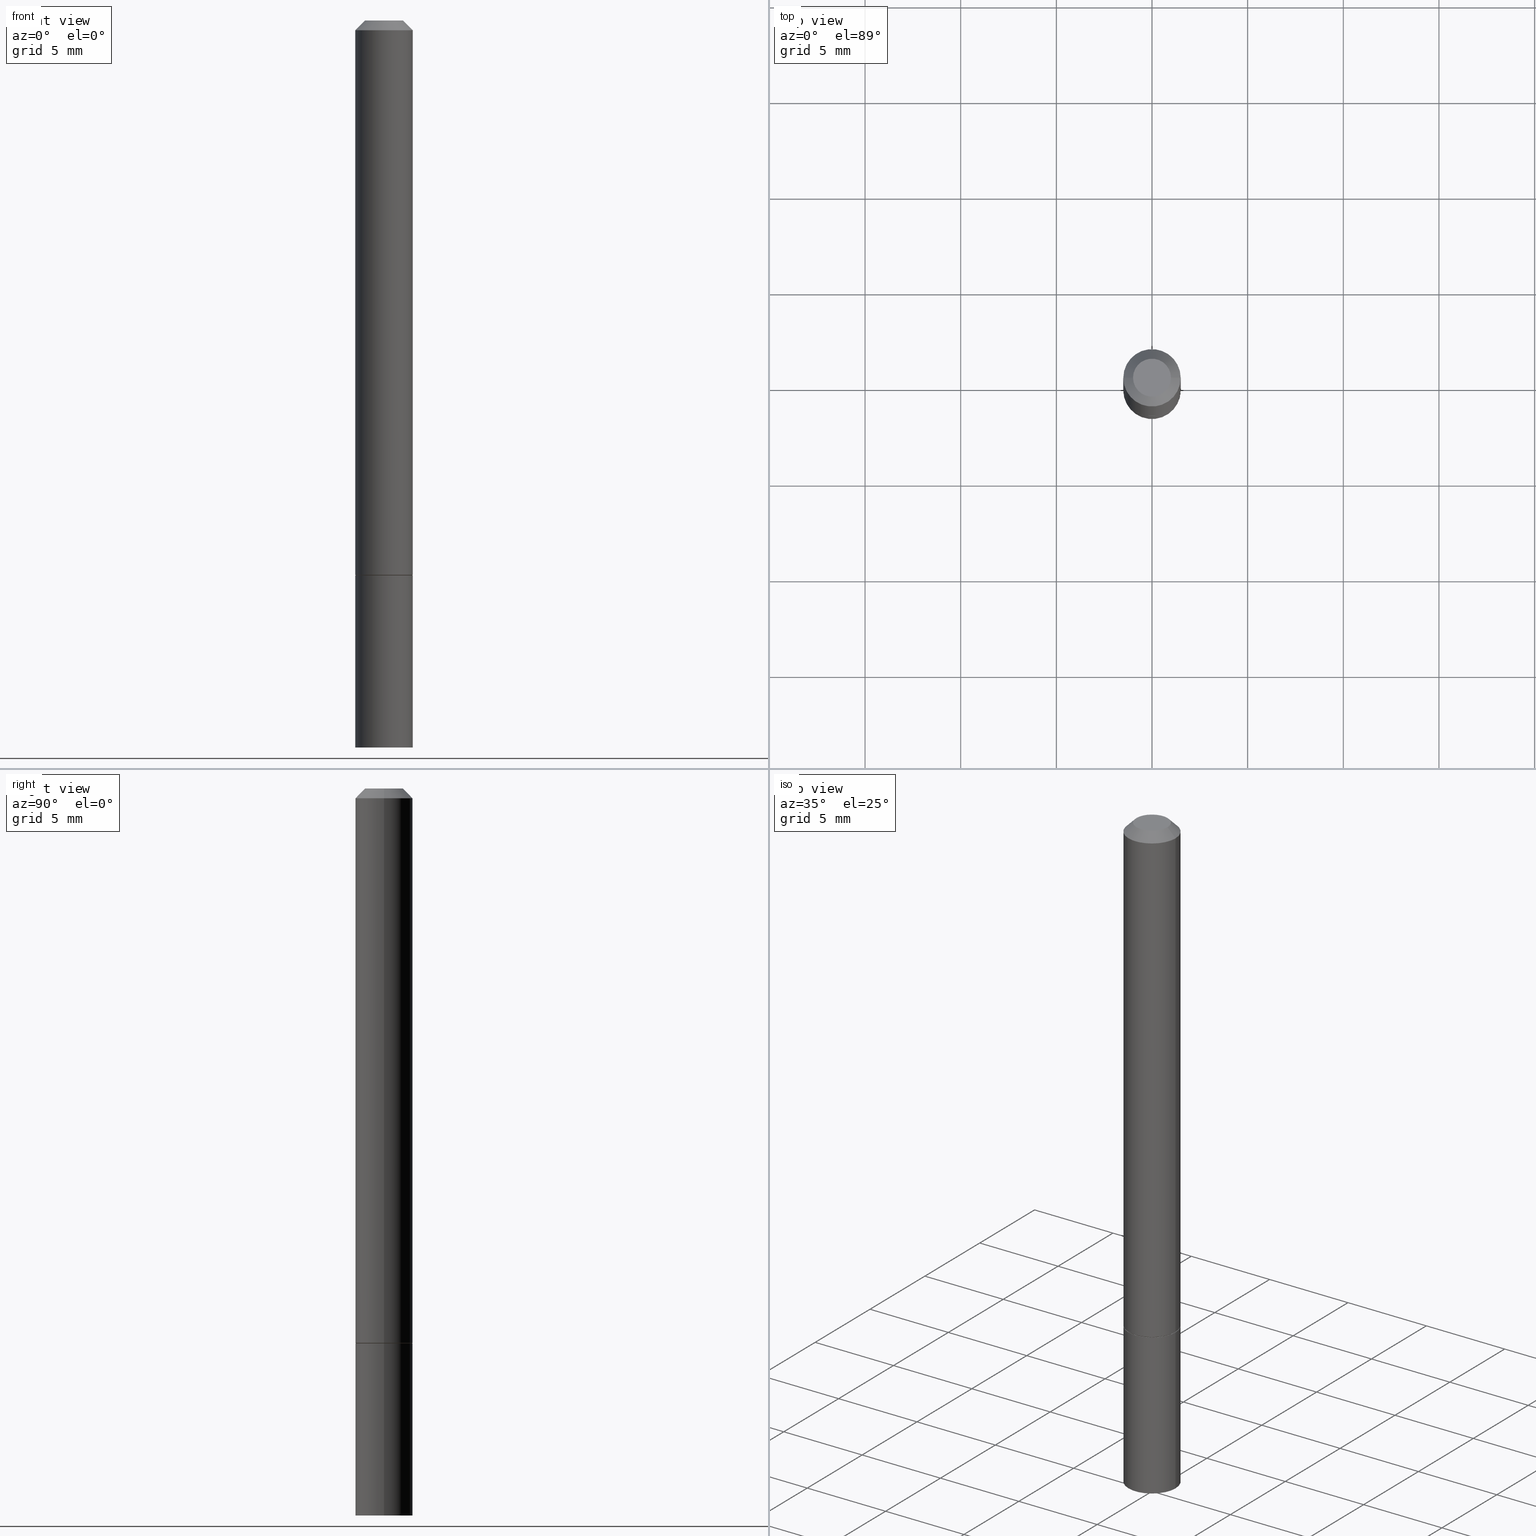
[diagram: canonical four-view strip — front | top / right | iso, engineering-drawing reading convention]
A machine part, canonical four-view strip (front | top / right | iso — engineering-drawing reading convention). The complete STEP part file that produces these views, byte-faithful:
ISO-10303-21;
HEADER;
FILE_DESCRIPTION (( 'STEP AP203' ),
    '1' );
FILE_NAME ('05075.STEP',
    '2024-02-27T12:31:26',
    ( '' ),
    ( '' ),
    'SwSTEP 2.0',
    'SolidWorks 2023',
    '' );
FILE_SCHEMA (( 'CONFIG_CONTROL_DESIGN' ));
ENDSEC;

DATA;
#1 = DIRECTION ( 'NONE',  ( 1.000000000000000000, -6.982962677686265133E-15, 0.000000000000000000 ) ) ;
#2 = DIRECTION ( 'NONE',  ( 1.000000000000000000, -6.982962677686272233E-15, 0.000000000000000000 ) ) ;
#3 = DATE_AND_TIME ( #255, #25 ) ;
#4 = DIRECTION ( 'NONE',  ( -1.000000000000000000, 6.982962677686265922E-15, -4.876176775795935793E-29 ) ) ;
#5 = EDGE_CURVE ( 'NONE', #354, #294, #287, .T. ) ;
#6 = ORIENTED_EDGE ( 'NONE', *, *, #187, .F. ) ;
#7 = CONICAL_SURFACE ( 'NONE', #115, 0.05804999999999999744, 0.7853981633975507526 ) ;
#8 = CARTESIAN_POINT ( 'NONE',  ( 0.05904999999999999832, -4.398917338808476664E-15, -1.141799999999999926 ) ) ;
#9 = DIRECTION ( 'NONE',  ( -2.445468806185136597E-29, 3.491481338843145583E-15, 1.000000000000000000 ) ) ;
#10 = DIRECTION ( 'NONE',  ( 0.7071067811866199593, -2.468850131083015945E-15, 0.7071067811864750752 ) ) ;
#11 = CARTESIAN_POINT ( 'NONE',  ( -0.05904999999999997057, 4.195754854663389506E-16, -2.904631170795520841E-30 ) ) ;
#12 = DIRECTION ( 'NONE',  ( -2.445468806185136597E-29, 3.491481338843145583E-15, 1.000000000000000000 ) ) ;
#13 = EDGE_LOOP ( 'NONE', ( #356, #195, #102, #322 ) ) ;
#14 = AXIS2_PLACEMENT_3D ( 'NONE', #264, #65, #69 ) ;
#15 = CC_DESIGN_APPROVAL ( #306, ( #124 ) ) ;
#16 = ORIENTED_EDGE ( 'NONE', *, *, #53, .T. ) ;
#17 = EDGE_LOOP ( 'NONE', ( #353, #199, #330, #298 ) ) ;
#18 = APPROVAL_ROLE ( '' ) ;
#19 = ORIENTED_EDGE ( 'NONE', *, *, #53, .F. ) ;
#20 = DATE_AND_TIME ( #188, #231 ) ;
#21 = ORIENTED_EDGE ( 'NONE', *, *, #247, .T. ) ;
#22 = ADVANCED_FACE ( 'NONE', ( #170 ), #308, .T. ) ;
#23 = EDGE_CURVE ( 'NONE', #240, #359, #225, .T. ) ;
#24 = VECTOR ( 'NONE', #10, 39.37007874015748143 ) ;
#25 = LOCAL_TIME ( 7, 31, 26.00000000000000000, #277 ) ;
#26 = CARTESIAN_POINT ( 'NONE',  ( 4.123439461174018893E-16, 0.05904999999999601540, -1.141800000000000148 ) ) ;
#27 = DIRECTION ( 'NONE',  ( -1.000000000000000000, 6.982962677686266711E-15, 0.000000000000000000 ) ) ;
#28 = ORIENTED_EDGE ( 'NONE', *, *, #250, .F. ) ;
#29 = DIRECTION ( 'NONE',  ( 0.000000000000000000, 0.000000000000000000, 1.000000000000000000 ) ) ;
#30 = DIRECTION ( 'NONE',  ( -2.445468806185136877E-29, 3.491481338843145188E-15, 1.000000000000000000 ) ) ;
#31 = CARTESIAN_POINT ( 'NONE',  ( 0.05804999999999999744, -4.391934376130790650E-15, -1.141799999999999704 ) ) ;
#32 = CARTESIAN_POINT ( 'NONE',  ( -0.05904999999999999832, -4.185513826400826604E-15, -1.141799999999999926 ) ) ;
#33 = CC_DESIGN_DATE_AND_TIME_ASSIGNMENT ( #157, #357, ( #208 ) ) ;
#34 = CARTESIAN_POINT ( 'NONE',  ( -0.05904999999999994975, 3.425143193405105373E-16, -0.02000000000000006287 ) ) ;
#35 = FACE_OUTER_BOUND ( 'NONE', #229, .T. ) ;
#36 = CARTESIAN_POINT ( 'NONE',  ( 0.000000000000000000, 0.000000000000000000, 0.000000000000000000 ) ) ;
#37 = DIRECTION ( 'NONE',  ( 1.000000000000000000, -6.982962677686265133E-15, 0.000000000000000000 ) ) ;
#38 = ADVANCED_FACE ( 'NONE', ( #335 ), #165, .T. ) ;
#39 = DIRECTION ( 'NONE',  ( -2.445468806185136877E-29, 3.491481338843145188E-15, 1.000000000000000000 ) ) ;
#40 = CYLINDRICAL_SURFACE ( 'NONE', #200, 0.05905000000000000526 ) ;
#41 = EDGE_LOOP ( 'NONE', ( #141, #340 ) ) ;
#42 = CIRCLE ( 'NONE', #68, 0.05904999999999994975 ) ;
#43 = COORDINATED_UNIVERSAL_TIME_OFFSET ( 5, 0, .BEHIND. ) ;
#44 = ORIENTED_EDGE ( 'NONE', *, *, #303, .T. ) ;
#45 = CALENDAR_DATE ( 2024, 27, 2 ) ;
#46 = ORIENTED_EDGE ( 'NONE', *, *, #201, .F. ) ;
#47 = PERSON_AND_ORGANIZATION ( #209, #137 ) ;
#48 = AXIS2_PLACEMENT_3D ( 'NONE', #135, #227, #252 ) ;
#49 = PRODUCT_DEFINITION_SHAPE ( 'NONE', 'NONE',  #124 ) ;
#50 = DIRECTION ( 'NONE',  ( 1.000000000000000000, 0.000000000000000000, 0.000000000000000000 ) ) ;
#51 = CARTESIAN_POINT ( 'NONE',  ( 2.792236282902187945E-29, -3.986573392691102533E-15, -1.141799999999999704 ) ) ;
#52 = LINE ( 'NONE', #164, #75 ) ;
#53 = EDGE_CURVE ( 'NONE', #304, #218, #224, .T. ) ;
#54 = MANIFOLD_SOLID_BREP ( 'Body-Move/Copy2[2]', #159 ) ;
#55 = DIRECTION ( 'NONE',  ( -2.445468806185136597E-29, 3.491481338843145583E-15, 1.000000000000000000 ) ) ;
#56 = DIRECTION ( 'NONE',  ( 2.438088387897960049E-29, -3.491481338843145188E-15, -1.000000000000000000 ) ) ;
#57 = EDGE_CURVE ( 'NONE', #218, #304, #327, .T. ) ;
#58 = CIRCLE ( 'NONE', #332, 0.05904999999999994975 ) ;
#59 = DIRECTION ( 'NONE',  ( -2.445468806185136597E-29, 3.491481338843145583E-15, 1.000000000000000000 ) ) ;
#60 = MANIFOLD_SOLID_BREP ( 'Body-Move/Copy2[1]', #189 ) ;
#61 = CARTESIAN_POINT ( 'NONE',  ( 2.789790814096003463E-29, -3.983081911352260315E-15, -1.140799999999999814 ) ) ;
#62 = CC_DESIGN_PERSON_AND_ORGANIZATION_ASSIGNMENT ( #132, #364, ( #363 ) ) ;
#63 = CARTESIAN_POINT ( 'NONE',  ( 0.000000000000000000, 0.000000000000000000, 0.000000000000000000 ) ) ;
#64 =( NAMED_UNIT ( * ) PLANE_ANGLE_UNIT ( ) SI_UNIT ( $, .RADIAN. ) );
#65 = DIRECTION ( 'NONE',  ( -2.445468806185136597E-29, 3.491481338843145583E-15, 1.000000000000000000 ) ) ;
#66 = DIRECTION ( 'NONE',  ( -1.000000000000000000, 6.982962677686265922E-15, -4.876176775795935793E-29 ) ) ;
#67 = PLANE ( 'NONE',  #130 ) ;
#68 = AXIS2_PLACEMENT_3D ( 'NONE', #259, #309, #193 ) ;
#69 = DIRECTION ( 'NONE',  ( 1.000000000000000000, -6.982962677686270655E-15, 0.000000000000000000 ) ) ;
#70 = DIRECTION ( 'NONE',  ( -2.445468806185136597E-29, 3.491481338843145583E-15, 1.000000000000000000 ) ) ;
#71 = ORIENTED_EDGE ( 'NONE', *, *, #250, .T. ) ;
#72 = APPROVAL_DATE_TIME ( #151, #257 ) ;
#73 = VERTEX_POINT ( 'NONE', #313 ) ;
#74 = AXIS2_PLACEMENT_3D ( 'NONE', #261, #283, #334 ) ;
#75 = VECTOR ( 'NONE', #192, 39.37007874015748854 ) ;
#76 = SHAPE_DEFINITION_REPRESENTATION ( #49, #106 ) ;
#77 = ORIENTED_EDGE ( 'NONE', *, *, #187, .T. ) ;
#78 = ORIENTED_EDGE ( 'NONE', *, *, #196, .T. ) ;
#79 = CONICAL_SURFACE ( 'NONE', #275, 0.05904999999999994975, 0.7853981633974476129 ) ;
#80 = DIRECTION ( 'NONE',  ( 2.438088387897960049E-29, -3.491481338843145188E-15, -1.000000000000000000 ) ) ;
#81 = DIRECTION ( 'NONE',  ( 2.438088387897960049E-29, -3.491481338843145188E-15, -1.000000000000000000 ) ) ;
#82 = LENGTH_MEASURE_WITH_UNIT ( LENGTH_MEASURE( 0.02539999999999999897 ), #221 );
#83 = AXIS2_PLACEMENT_3D ( 'NONE', #265, #315, #147 ) ;
#84 = DIRECTION ( 'NONE',  ( 2.445468806185136597E-29, -3.491481338843145583E-15, -1.000000000000000000 ) ) ;
#85 = CARTESIAN_POINT ( 'NONE',  ( 0.05905000000000000526, -4.123439461173741313E-16, 2.879382386107500571E-30 ) ) ;
#86 = ADVANCED_FACE ( 'NONE', ( #113 ), #278, .T. ) ;
#87 = CARTESIAN_POINT ( 'NONE',  ( -0.05904999999999994975, 3.425143193405105373E-16, -0.02000000000000006287 ) ) ;
#88 = CARTESIAN_POINT ( 'NONE',  ( 0.03904999999999995974, -3.714222401791248901E-16, -4.268512490100186330E-17 ) ) ;
#89 = AXIS2_PLACEMENT_3D ( 'NONE', #235, #348, #37 ) ;
#90 = DIRECTION ( 'NONE',  ( -2.445468806185136597E-29, 3.491481338843145583E-15, 1.000000000000000000 ) ) ;
#91 = DIRECTION ( 'NONE',  ( -2.445468806185136597E-29, 3.491481338843145583E-15, 1.000000000000000000 ) ) ;
#92 = DESIGN_CONTEXT ( 'detailed design', #226, 'design' ) ;
#93 = DIRECTION ( 'NONE',  ( 1.000000000000000000, -6.982962677686266711E-15, 4.873707401586867728E-29 ) ) ;
#94 = LINE ( 'NONE', #11, #238 ) ;
#95 = CIRCLE ( 'NONE', #260, 0.05904999999999999832 ) ;
#96 = COORDINATED_UNIVERSAL_TIME_OFFSET ( 5, 0, .BEHIND. ) ;
#97 = DIRECTION ( 'NONE',  ( -2.438088387897960049E-29, 3.491481338843145188E-15, 1.000000000000000000 ) ) ;
#98 = EDGE_LOOP ( 'NONE', ( #109, #78 ) ) ;
#99 = VERTEX_POINT ( 'NONE', #172 ) ;
#100 = ORIENTED_EDGE ( 'NONE', *, *, #301, .F. ) ;
#101 = ORIENTED_EDGE ( 'NONE', *, *, #360, .T. ) ;
#102 = ORIENTED_EDGE ( 'NONE', *, *, #350, .T. ) ;
#103 = AXIS2_PLACEMENT_3D ( 'NONE', #239, #352, #290 ) ;
#104 = CC_DESIGN_APPROVAL ( #257, ( #338 ) ) ;
#105 = APPLICATION_PROTOCOL_DEFINITION ( 'international standard', 'config_control_design', 1994, #226 ) ;
#106 = ADVANCED_BREP_SHAPE_REPRESENTATION ( '05075', ( #60, #54, #145 ), #184 ) ;
#107 = CARTESIAN_POINT ( 'NONE',  ( 1.043851414335219781E-45, -1.490343170380447145E-31, -4.268512490100411279E-17 ) ) ;
#108 = CIRCLE ( 'NONE', #48, 0.05905000000000001914 ) ;
#109 = ORIENTED_EDGE ( 'NONE', *, *, #5, .T. ) ;
#110 = FACE_OUTER_BOUND ( 'NONE', #220, .T. ) ;
#111 = PRODUCT_RELATED_PRODUCT_CATEGORY ( 'detail', '', ( #363 ) ) ;
#112 = APPROVAL_STATUS ( 'not_yet_approved' ) ;
#113 = FACE_OUTER_BOUND ( 'NONE', #326, .T. ) ;
#114 = CARTESIAN_POINT ( 'NONE',  ( -0.05804999999999999744, -3.574103334582364048E-15, -1.141799999999999704 ) ) ;
#115 = AXIS2_PLACEMENT_3D ( 'NONE', #144, #9, #118 ) ;
#116 = CARTESIAN_POINT ( 'NONE',  ( 0.05905000000000001914, -5.635949177160603791E-15, -1.496099999999999985 ) ) ;
#117 = CC_DESIGN_SECURITY_CLASSIFICATION ( #208, ( #338 ) ) ;
#118 = DIRECTION ( 'NONE',  ( 1.000000000000000000, -6.982962677686272233E-15, 0.000000000000000000 ) ) ;
#119 = DIRECTION ( 'NONE',  ( 1.000000000000000000, -6.982962677686266711E-15, 0.000000000000000000 ) ) ;
#120 = CARTESIAN_POINT ( 'NONE',  ( 0.05904999999999997057, -4.123439461173738848E-16, 2.879382386107498819E-30 ) ) ;
#121 = ORIENTED_EDGE ( 'NONE', *, *, #350, .F. ) ;
#122 = CIRCLE ( 'NONE', #83, 0.05904999999999999832 ) ;
#123 = EDGE_LOOP ( 'NONE', ( #19, #134 ) ) ;
#124 = PRODUCT_DEFINITION ( 'UNKNOWN', '', #338, #92 ) ;
#125 = DATE_AND_TIME ( #272, #297 ) ;
#126 = ORIENTED_EDGE ( 'NONE', *, *, #246, .F. ) ;
#127 = VERTEX_POINT ( 'NONE', #87 ) ;
#128 = APPROVAL_ROLE ( '' ) ;
#129 = VERTEX_POINT ( 'NONE', #197 ) ;
#130 = AXIS2_PLACEMENT_3D ( 'NONE', #174, #97, #177 ) ;
#131 = VECTOR ( 'NONE', #228, 39.37007874015748143 ) ;
#132 = PERSON_AND_ORGANIZATION ( #209, #137 ) ;
#133 = CC_DESIGN_PERSON_AND_ORGANIZATION_ASSIGNMENT ( #211, #155, ( #124 ) ) ;
#134 = ORIENTED_EDGE ( 'NONE', *, *, #57, .F. ) ;
#135 = CARTESIAN_POINT ( 'NONE',  ( 3.658665880933582389E-29, -5.223605231043229660E-15, -1.496099999999999985 ) ) ;
#136 = VERTEX_POINT ( 'NONE', #32 ) ;
#137 = ORGANIZATION ( 'UNSPECIFIED', 'UNSPECIFIED', '' ) ;
#138 = DIRECTION ( 'NONE',  ( 1.000000000000000000, -6.982962677686267499E-15, 4.876176775795936353E-29 ) ) ;
#139 = EDGE_LOOP ( 'NONE', ( #266, #213, #273, #150 ) ) ;
#140 = PLANE ( 'NONE',  #190 ) ;
#141 = ORIENTED_EDGE ( 'NONE', *, *, #254, .F. ) ;
#142 = CARTESIAN_POINT ( 'NONE',  ( 0.05804999999999999744, -4.391934376130790650E-15, -1.141799999999999704 ) ) ;
#143 = AXIS2_PLACEMENT_3D ( 'NONE', #107, #90, #339 ) ;
#144 = CARTESIAN_POINT ( 'NONE',  ( 2.792236282902187945E-29, -3.986573392691102533E-15, -1.141799999999999704 ) ) ;
#145 = AXIS2_PLACEMENT_3D ( 'NONE', #36, #29, #50 ) ;
#146 = MECHANICAL_CONTEXT ( 'NONE', #198, 'mechanical' ) ;
#147 = DIRECTION ( 'NONE',  ( 1.000000000000000000, -6.982962677686265133E-15, 0.000000000000000000 ) ) ;
#148 = DIRECTION ( 'NONE',  ( -2.445468806185136877E-29, 3.491481338843145188E-15, 1.000000000000000000 ) ) ;
#149 = EDGE_CURVE ( 'NONE', #127, #129, #42, .T. ) ;
#150 = ORIENTED_EDGE ( 'NONE', *, *, #23, .F. ) ;
#151 = DATE_AND_TIME ( #214, #160 ) ;
#152 = CIRCLE ( 'NONE', #89, 0.05904999999999999832 ) ;
#153 = EDGE_LOOP ( 'NONE', ( #21, #300 ) ) ;
#154 = UNCERTAINTY_MEASURE_WITH_UNIT (LENGTH_MEASURE( 1.000000000000000082E-05 ), #345, 'distance_accuracy_value', 'NONE');
#155 = PERSON_AND_ORGANIZATION_ROLE ( 'creator' ) ;
#156 = VERTEX_POINT ( 'NONE', #276 ) ;
#157 = DATE_AND_TIME ( #45, #288 ) ;
#158 = ORIENTED_EDGE ( 'NONE', *, *, #175, .T. ) ;
#159 = CLOSED_SHELL ( 'NONE', ( #286, #22, #166, #344, #222, #271, #268, #358 ) ) ;
#160 = LOCAL_TIME ( 7, 31, 26.00000000000000000, #96 ) ;
#161 = ADVANCED_FACE ( 'NONE', ( #251 ), #337, .F. ) ;
#162 = AXIS2_PLACEMENT_3D ( 'NONE', #321, #70, #179 ) ;
#163 = DIRECTION ( 'NONE',  ( -2.445468806185136597E-29, 3.491481338843145583E-15, 1.000000000000000000 ) ) ;
#164 = CARTESIAN_POINT ( 'NONE',  ( 0.05904999999999994975, -4.749420335452716734E-16, -0.02000000000000006287 ) ) ;
#165 = PLANE ( 'NONE',  #342 ) ;
#166 = ADVANCED_FACE ( 'NONE', ( #110 ), #79, .T. ) ;
#167 = DIRECTION ( 'NONE',  ( -1.000000000000000000, 6.982962677686265922E-15, -4.876176775795935793E-29 ) ) ;
#168 = VECTOR ( 'NONE', #39, 39.37007874015748143 ) ;
#169 = CIRCLE ( 'NONE', #14, 0.05905000000000001914 ) ;
#170 = FACE_OUTER_BOUND ( 'NONE', #329, .T. ) ;
#171 = DIRECTION ( 'NONE',  ( -2.445468806185136597E-29, 3.491481338843145583E-15, 1.000000000000000000 ) ) ;
#172 = CARTESIAN_POINT ( 'NONE',  ( -0.05905000000000002608, -4.185513826400826604E-15, -1.496099999999999985 ) ) ;
#173 = FACE_OUTER_BOUND ( 'NONE', #123, .T. ) ;
#174 = CARTESIAN_POINT ( 'NONE',  ( 2.792236282902188505E-29, -3.986573392691103322E-15, -1.141799999999999926 ) ) ;
#175 = EDGE_CURVE ( 'NONE', #99, #240, #108, .T. ) ;
#176 = APPROVAL_STATUS ( 'not_yet_approved' ) ;
#177 = DIRECTION ( 'NONE',  ( 1.000000000000000000, -6.982962677686265922E-15, 4.876176775795935793E-29 ) ) ;
#178 = PERSON_AND_ORGANIZATION ( #209, #137 ) ;
#179 = DIRECTION ( 'NONE',  ( 1.000000000000000000, -6.982962677686272233E-15, 0.000000000000000000 ) ) ;
#180 = ORIENTED_EDGE ( 'NONE', *, *, #293, .F. ) ;
#181 = APPROVAL_STATUS ( 'not_yet_approved' ) ;
#182 = CIRCLE ( 'NONE', #216, 0.05904999999999999832 ) ;
#183 = ORIENTED_EDGE ( 'NONE', *, *, #333, .T. ) ;
#184 =( GEOMETRIC_REPRESENTATION_CONTEXT ( 3 ) GLOBAL_UNCERTAINTY_ASSIGNED_CONTEXT ( ( #154 ) ) GLOBAL_UNIT_ASSIGNED_CONTEXT ( ( #345, #64, #347 ) ) REPRESENTATION_CONTEXT ( 'NONE', 'WORKASPACE' ) );
#185 = PERSON_AND_ORGANIZATION ( #209, #137 ) ;
#186 = EDGE_LOOP ( 'NONE', ( #46, #183, #253, #244 ) ) ;
#187 = EDGE_CURVE ( 'NONE', #156, #73, #95, .T. ) ;
#188 = CALENDAR_DATE ( 2024, 27, 2 ) ;
#189 = CLOSED_SHELL ( 'NONE', ( #279, #38, #161, #86 ) ) ;
#190 = AXIS2_PLACEMENT_3D ( 'NONE', #289, #80, #66 ) ;
#191 = APPROVAL ( #181, 'UNSPECIFIED' ) ;
#192 = DIRECTION ( 'NONE',  ( 0.7071067811865469066, -7.319954787623252890E-15, -0.7071067811865479058 ) ) ;
#193 = DIRECTION ( 'NONE',  ( 1.000000000000000000, -6.982962677686266711E-15, 0.000000000000000000 ) ) ;
#194 = APPROVAL_ROLE ( '' ) ;
#195 = ORIENTED_EDGE ( 'NONE', *, *, #57, .T. ) ;
#196 = EDGE_CURVE ( 'NONE', #294, #354, #302, .T. ) ;
#197 = CARTESIAN_POINT ( 'NONE',  ( 0.05904999999999994975, -4.749420335452716734E-16, -0.02000000000000006287 ) ) ;
#198 = APPLICATION_CONTEXT ( 'configuration controlled 3d designs of mechanical parts and assemblies' ) ;
#199 = ORIENTED_EDGE ( 'NONE', *, *, #5, .F. ) ;
#200 = AXIS2_PLACEMENT_3D ( 'NONE', #346, #91, #205 ) ;
#201 = EDGE_CURVE ( 'NONE', #73, #127, #94, .T. ) ;
#202 = LINE ( 'NONE', #34, #295 ) ;
#203 = CARTESIAN_POINT ( 'NONE',  ( 2.792236282902187945E-29, -3.986573392691102533E-15, -1.141799999999999704 ) ) ;
#204 = CC_DESIGN_PERSON_AND_ORGANIZATION_ASSIGNMENT ( #47, #236, ( #208 ) ) ;
#205 = DIRECTION ( 'NONE',  ( 1.000000000000000000, -6.982962677686267499E-15, 4.876176775795936353E-29 ) ) ;
#206 = DIRECTION ( 'NONE',  ( -2.445468806185136597E-29, 3.491481338843145583E-15, 1.000000000000000000 ) ) ;
#207 = LINE ( 'NONE', #120, #168 ) ;
#208 = SECURITY_CLASSIFICATION ( '', '', #318 ) ;
#209 = PERSON ( 'UNSPECIFIED', 'UNSPECIFIED', 'UNSPECIFIED', ('UNSPECIFIED'), ('UNSPECIFIED'), ('UNSPECIFIED') ) ;
#210 = CC_DESIGN_PERSON_AND_ORGANIZATION_ASSIGNMENT ( #178, #299, ( #338 ) ) ;
#211 = PERSON_AND_ORGANIZATION ( #209, #137 ) ;
#212 = FACE_OUTER_BOUND ( 'NONE', #13, .T. ) ;
#213 = ORIENTED_EDGE ( 'NONE', *, *, #246, .T. ) ;
#214 = CALENDAR_DATE ( 2024, 27, 2 ) ;
#215 = APPROVAL_DATE_TIME ( #3, #306 ) ;
#216 = AXIS2_PLACEMENT_3D ( 'NONE', #61, #171, #314 ) ;
#217 = ORIENTED_EDGE ( 'NONE', *, *, #196, .F. ) ;
#218 = VERTEX_POINT ( 'NONE', #285 ) ;
#219 = EDGE_CURVE ( 'NONE', #156, #129, #207, .T. ) ;
#220 = EDGE_LOOP ( 'NONE', ( #217, #101, #71, #100 ) ) ;
#221 =( LENGTH_UNIT ( ) NAMED_UNIT ( * ) SI_UNIT ( $, .METRE. ) );
#222 = ADVANCED_FACE ( 'NONE', ( #291 ), #233, .T. ) ;
#223 = DIRECTION ( 'NONE',  ( -2.445468806185136597E-29, 3.491481338843145583E-15, 1.000000000000000000 ) ) ;
#224 = CIRCLE ( 'NONE', #331, 0.05804999999999999744 ) ;
#225 = LINE ( 'NONE', #85, #305 ) ;
#226 = APPLICATION_CONTEXT ( 'configuration controlled 3d designs of mechanical parts and assemblies' ) ;
#227 = DIRECTION ( 'NONE',  ( -2.445468806185136597E-29, 3.491481338843145583E-15, 1.000000000000000000 ) ) ;
#228 = DIRECTION ( 'NONE',  ( -0.7071067811866199593, 7.493145998870616062E-15, 0.7071067811864750752 ) ) ;
#229 = EDGE_LOOP ( 'NONE', ( #16, #44, #6, #121 ) ) ;
#230 = CONICAL_SURFACE ( 'NONE', #74, 0.05904999999999994975, 0.7853981633974476129 ) ;
#231 = LOCAL_TIME ( 7, 31, 26.00000000000000000, #355 ) ;
#232 = LINE ( 'NONE', #31, #24 ) ;
#233 = CYLINDRICAL_SURFACE ( 'NONE', #103, 0.05904999999999997057 ) ;
#234 = CARTESIAN_POINT ( 'NONE',  ( -0.03904999999999995974, 3.075995059520794305E-16, -4.268512490100614657E-17 ) ) ;
#235 = CARTESIAN_POINT ( 'NONE',  ( 2.792236282902188505E-29, -3.986573392691103322E-15, -1.141799999999999926 ) ) ;
#236 = PERSON_AND_ORGANIZATION_ROLE ( 'classification_officer' ) ;
#237 = CARTESIAN_POINT ( 'NONE',  ( -0.05905000000000000526, 4.195754854663391971E-16, -2.904631170795522242E-30 ) ) ;
#238 = VECTOR ( 'NONE', #148, 39.37007874015748143 ) ;
#239 = CARTESIAN_POINT ( 'NONE',  ( 0.000000000000000000, 0.000000000000000000, 0.000000000000000000 ) ) ;
#240 = VERTEX_POINT ( 'NONE', #116 ) ;
#241 = APPROVAL_DATE_TIME ( #125, #191 ) ;
#242 = ORIENTED_EDGE ( 'NONE', *, *, #219, .F. ) ;
#243 = AXIS2_PLACEMENT_3D ( 'NONE', #51, #223, #282 ) ;
#244 = ORIENTED_EDGE ( 'NONE', *, *, #149, .F. ) ;
#245 = CC_DESIGN_APPROVAL ( #191, ( #208 ) ) ;
#246 = EDGE_CURVE ( 'NONE', #99, #136, #349, .T. ) ;
#247 = EDGE_CURVE ( 'NONE', #359, #136, #122, .T. ) ;
#248 = AXIS2_PLACEMENT_3D ( 'NONE', #63, #280, #284 ) ;
#249 = APPROVAL_PERSON_ORGANIZATION ( #336, #306, #194 ) ;
#250 = EDGE_CURVE ( 'NONE', #129, #127, #58, .T. ) ;
#251 = FACE_OUTER_BOUND ( 'NONE', #153, .T. ) ;
#252 = DIRECTION ( 'NONE',  ( 1.000000000000000000, -6.982962677686270655E-15, 0.000000000000000000 ) ) ;
#253 = ORIENTED_EDGE ( 'NONE', *, *, #219, .T. ) ;
#254 = EDGE_CURVE ( 'NONE', #240, #99, #169, .T. ) ;
#255 = CALENDAR_DATE ( 2024, 27, 2 ) ;
#256 = CARTESIAN_POINT ( 'NONE',  ( 4.123439461174106654E-16, 0.05904999999999479415, -1.496100000000000207 ) ) ;
#257 = APPROVAL ( #176, 'UNSPECIFIED' ) ;
#258 = DIRECTION ( 'NONE',  ( -0.7071067811865469066, 2.468850131082251144E-15, -0.7071067811865479058 ) ) ;
#259 = CARTESIAN_POINT ( 'NONE',  ( 4.890937612370288923E-31, -6.982962677686312563E-17, -0.02000000000000006287 ) ) ;
#260 = AXIS2_PLACEMENT_3D ( 'NONE', #310, #59, #1 ) ;
#261 = CARTESIAN_POINT ( 'NONE',  ( 4.890937612370288923E-31, -6.982962677686312563E-17, -0.02000000000000006287 ) ) ;
#262 = CARTESIAN_POINT ( 'NONE',  ( 4.890937612370288923E-31, -6.982962677686312563E-17, -0.02000000000000006287 ) ) ;
#263 = FACE_OUTER_BOUND ( 'NONE', #17, .T. ) ;
#264 = CARTESIAN_POINT ( 'NONE',  ( 3.658665880933582389E-29, -5.223605231043229660E-15, -1.496099999999999985 ) ) ;
#265 = CARTESIAN_POINT ( 'NONE',  ( 2.792236282902188505E-29, -3.986573392691103322E-15, -1.141799999999999926 ) ) ;
#266 = ORIENTED_EDGE ( 'NONE', *, *, #254, .T. ) ;
#267 = CONICAL_SURFACE ( 'NONE', #162, 0.05804999999999999744, 0.7853981633975507526 ) ;
#268 = ADVANCED_FACE ( 'NONE', ( #173 ), #67, .F. ) ;
#269 = PERSON_AND_ORGANIZATION ( #209, #137 ) ;
#270 = ORIENTED_EDGE ( 'NONE', *, *, #23, .T. ) ;
#271 = ADVANCED_FACE ( 'NONE', ( #212 ), #267, .T. ) ;
#272 = CALENDAR_DATE ( 2024, 27, 2 ) ;
#273 = ORIENTED_EDGE ( 'NONE', *, *, #247, .F. ) ;
#274 = AXIS2_PLACEMENT_3D ( 'NONE', #26, #56, #167 ) ;
#275 = AXIS2_PLACEMENT_3D ( 'NONE', #365, #84, #27 ) ;
#276 = CARTESIAN_POINT ( 'NONE',  ( 0.05904999999999999832, -4.395425857469634446E-15, -1.140799999999999814 ) ) ;
#277 = COORDINATED_UNIVERSAL_TIME_OFFSET ( 5, 0, .BEHIND. ) ;
#278 = CYLINDRICAL_SURFACE ( 'NONE', #248, 0.05905000000000000526 ) ;
#279 = ADVANCED_FACE ( 'NONE', ( #292 ), #40, .T. ) ;
#280 = DIRECTION ( 'NONE',  ( -2.445468806185136597E-29, 3.491481338843145583E-15, 1.000000000000000000 ) ) ;
#281 = VECTOR ( 'NONE', #317, 39.37007874015748143 ) ;
#282 = DIRECTION ( 'NONE',  ( 1.000000000000000000, -6.982962677686272233E-15, 0.000000000000000000 ) ) ;
#283 = DIRECTION ( 'NONE',  ( 2.445468806185136597E-29, -3.491481338843145583E-15, -1.000000000000000000 ) ) ;
#284 = DIRECTION ( 'NONE',  ( 1.000000000000000000, -6.982962677686267499E-15, 4.876176775795936353E-29 ) ) ;
#285 = CARTESIAN_POINT ( 'NONE',  ( -0.05804999999999999744, -3.568804880234142435E-15, -1.141799999999999704 ) ) ;
#286 = ADVANCED_FACE ( 'NONE', ( #35 ), #7, .T. ) ;
#287 = CIRCLE ( 'NONE', #143, 0.03904999999999995974 ) ;
#288 = LOCAL_TIME ( 7, 31, 26.00000000000000000, #43 ) ;
#289 = CARTESIAN_POINT ( 'NONE',  ( 2.726846925636483731E-16, 0.03904999999999995974, -1.576849087323267144E-16 ) ) ;
#290 = DIRECTION ( 'NONE',  ( 1.000000000000000000, -6.982962677686267499E-15, 4.876176775795936353E-29 ) ) ;
#291 = FACE_OUTER_BOUND ( 'NONE', #186, .T. ) ;
#292 = FACE_OUTER_BOUND ( 'NONE', #139, .T. ) ;
#293 = EDGE_CURVE ( 'NONE', #136, #359, #152, .T. ) ;
#294 = VERTEX_POINT ( 'NONE', #88 ) ;
#295 = VECTOR ( 'NONE', #258, 39.37007874015748854 ) ;
#296 = PERSON_AND_ORGANIZATION_ROLE ( 'creator' ) ;
#297 = LOCAL_TIME ( 7, 31, 26.00000000000000000, #320 ) ;
#298 = ORIENTED_EDGE ( 'NONE', *, *, #149, .T. ) ;
#299 = PERSON_AND_ORGANIZATION_ROLE ( 'design_supplier' ) ;
#300 = ORIENTED_EDGE ( 'NONE', *, *, #293, .T. ) ;
#301 = EDGE_CURVE ( 'NONE', #354, #127, #202, .T. ) ;
#302 = CIRCLE ( 'NONE', #351, 0.03904999999999995974 ) ;
#303 = EDGE_CURVE ( 'NONE', #218, #73, #312, .T. ) ;
#304 = VERTEX_POINT ( 'NONE', #142 ) ;
#305 = VECTOR ( 'NONE', #30, 39.37007874015748143 ) ;
#306 = APPROVAL ( #112, 'UNSPECIFIED' ) ;
#307 = FACE_OUTER_BOUND ( 'NONE', #98, .T. ) ;
#308 = CYLINDRICAL_SURFACE ( 'NONE', #361, 0.05904999999999997057 ) ;
#309 = DIRECTION ( 'NONE',  ( -2.445468806185136597E-29, 3.491481338843145583E-15, 1.000000000000000000 ) ) ;
#310 = CARTESIAN_POINT ( 'NONE',  ( 2.789790814096003463E-29, -3.983081911352260315E-15, -1.140799999999999814 ) ) ;
#311 = APPROVAL_PERSON_ORGANIZATION ( #185, #191, #18 ) ;
#312 = LINE ( 'NONE', #114, #131 ) ;
#313 = CARTESIAN_POINT ( 'NONE',  ( -0.05904999999999999832, -1.606880283598221722E-15, -1.140799999999999814 ) ) ;
#314 = DIRECTION ( 'NONE',  ( 1.000000000000000000, -6.982962677686265133E-15, 0.000000000000000000 ) ) ;
#315 = DIRECTION ( 'NONE',  ( -2.445468806185136597E-29, 3.491481338843145583E-15, 1.000000000000000000 ) ) ;
#316 = APPLICATION_PROTOCOL_DEFINITION ( 'international standard', 'config_control_design', 1994, #198 ) ;
#317 = DIRECTION ( 'NONE',  ( -2.445468806185136877E-29, 3.491481338843145188E-15, 1.000000000000000000 ) ) ;
#318 = SECURITY_CLASSIFICATION_LEVEL ( 'unclassified' ) ;
#319 = CARTESIAN_POINT ( 'NONE',  ( 1.043851414335219781E-45, -1.490343170380447145E-31, -4.268512490100411279E-17 ) ) ;
#320 = COORDINATED_UNIVERSAL_TIME_OFFSET ( 5, 0, .BEHIND. ) ;
#321 = CARTESIAN_POINT ( 'NONE',  ( 2.792236282902187945E-29, -3.986573392691102533E-15, -1.141799999999999704 ) ) ;
#322 = ORIENTED_EDGE ( 'NONE', *, *, #333, .F. ) ;
#323 = CC_DESIGN_DATE_AND_TIME_ASSIGNMENT ( #20, #328, ( #124 ) ) ;
#324 = PERSON_AND_ORGANIZATION ( #209, #137 ) ;
#325 = ORIENTED_EDGE ( 'NONE', *, *, #201, .T. ) ;
#326 = EDGE_LOOP ( 'NONE', ( #126, #158, #270, #180 ) ) ;
#327 = CIRCLE ( 'NONE', #243, 0.05804999999999999744 ) ;
#328 = DATE_TIME_ROLE ( 'creation_date' ) ;
#329 = EDGE_LOOP ( 'NONE', ( #77, #325, #28, #242 ) ) ;
#330 = ORIENTED_EDGE ( 'NONE', *, *, #301, .T. ) ;
#331 = AXIS2_PLACEMENT_3D ( 'NONE', #203, #163, #2 ) ;
#332 = AXIS2_PLACEMENT_3D ( 'NONE', #262, #12, #119 ) ;
#333 = EDGE_CURVE ( 'NONE', #73, #156, #182, .T. ) ;
#334 = DIRECTION ( 'NONE',  ( -1.000000000000000000, 6.982962677686266711E-15, 0.000000000000000000 ) ) ;
#335 = FACE_OUTER_BOUND ( 'NONE', #41, .T. ) ;
#336 = PERSON_AND_ORGANIZATION ( #209, #137 ) ;
#337 = PLANE ( 'NONE',  #274 ) ;
#338 = PRODUCT_DEFINITION_FORMATION_WITH_SPECIFIED_SOURCE ( 'ANY', '', #363, .NOT_KNOWN. ) ;
#339 = DIRECTION ( 'NONE',  ( 1.000000000000000000, -6.982962677686266711E-15, 4.873707401586867728E-29 ) ) ;
#340 = ORIENTED_EDGE ( 'NONE', *, *, #175, .F. ) ;
#341 = CARTESIAN_POINT ( 'NONE',  ( 0.000000000000000000, 0.000000000000000000, 0.000000000000000000 ) ) ;
#342 = AXIS2_PLACEMENT_3D ( 'NONE', #256, #81, #4 ) ;
#343 = APPROVAL_PERSON_ORGANIZATION ( #324, #257, #128 ) ;
#344 = ADVANCED_FACE ( 'NONE', ( #263 ), #230, .T. ) ;
#345 =( CONVERSION_BASED_UNIT ( 'INCH', #82 ) LENGTH_UNIT ( ) NAMED_UNIT ( #366 ) );
#346 = CARTESIAN_POINT ( 'NONE',  ( 0.000000000000000000, 0.000000000000000000, 0.000000000000000000 ) ) ;
#347 =( NAMED_UNIT ( * ) SI_UNIT ( $, .STERADIAN. ) SOLID_ANGLE_UNIT ( ) );
#348 = DIRECTION ( 'NONE',  ( -2.445468806185136597E-29, 3.491481338843145583E-15, 1.000000000000000000 ) ) ;
#349 = LINE ( 'NONE', #237, #281 ) ;
#350 = EDGE_CURVE ( 'NONE', #304, #156, #232, .T. ) ;
#351 = AXIS2_PLACEMENT_3D ( 'NONE', #319, #206, #93 ) ;
#352 = DIRECTION ( 'NONE',  ( -2.445468806185136597E-29, 3.491481338843145583E-15, 1.000000000000000000 ) ) ;
#353 = ORIENTED_EDGE ( 'NONE', *, *, #360, .F. ) ;
#354 = VERTEX_POINT ( 'NONE', #234 ) ;
#355 = COORDINATED_UNIVERSAL_TIME_OFFSET ( 5, 0, .BEHIND. ) ;
#356 = ORIENTED_EDGE ( 'NONE', *, *, #303, .F. ) ;
#357 = DATE_TIME_ROLE ( 'classification_date' ) ;
#358 = ADVANCED_FACE ( 'NONE', ( #307 ), #140, .F. ) ;
#359 = VERTEX_POINT ( 'NONE', #8 ) ;
#360 = EDGE_CURVE ( 'NONE', #294, #129, #52, .T. ) ;
#361 = AXIS2_PLACEMENT_3D ( 'NONE', #341, #55, #138 ) ;
#362 = CC_DESIGN_PERSON_AND_ORGANIZATION_ASSIGNMENT ( #269, #296, ( #338 ) ) ;
#363 = PRODUCT ( '05075', '05075', '', ( #146 ) ) ;
#364 = PERSON_AND_ORGANIZATION_ROLE ( 'design_owner' ) ;
#365 = CARTESIAN_POINT ( 'NONE',  ( 4.890937612370288923E-31, -6.982962677686312563E-17, -0.02000000000000006287 ) ) ;
#366 = DIMENSIONAL_EXPONENTS ( 1.000000000000000000, 0.000000000000000000, 0.000000000000000000, 0.000000000000000000, 0.000000000000000000, 0.000000000000000000, 0.000000000000000000 ) ;
ENDSEC;
END-ISO-10303-21;
